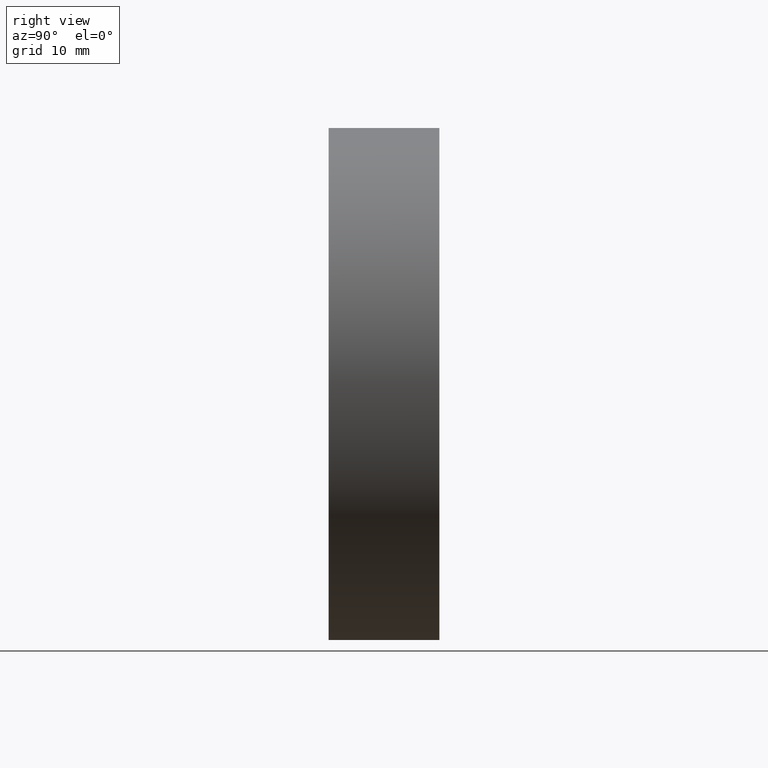
[diagram: clean part render]
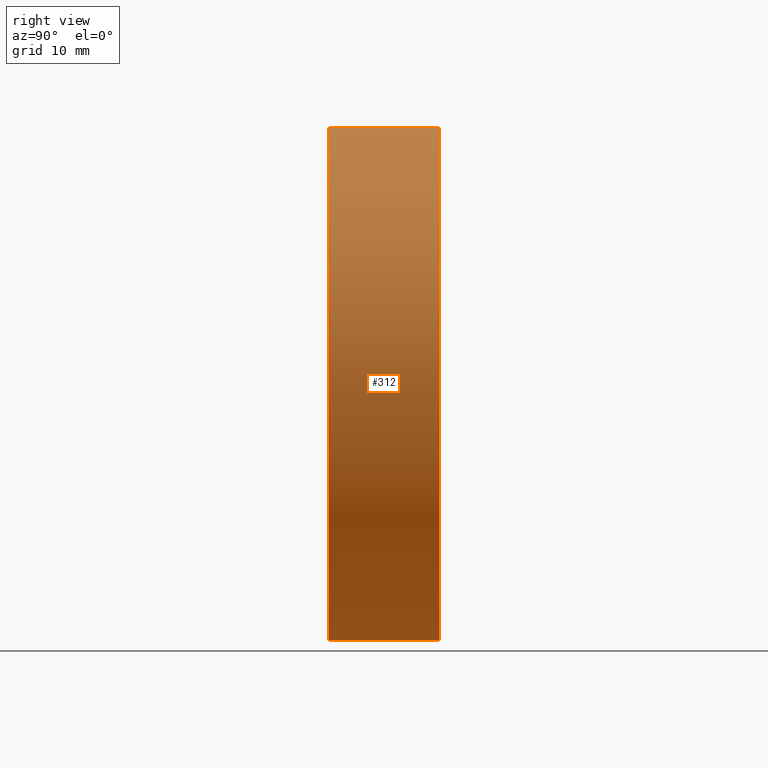
[diagram: same view with one face highlighted and labeled with its STEP entity id]
A machine part, right view. The second image highlights one B-rep face of the part: STEP entity #312.
In plain terms, the highlighted cylindrical surface (partial cylindrical patch) has radius 25.4 mm, axis along (-0, 1, -0).
Its self-contained STEP definition (entity closure, byte-faithful):
#3 = FACE_OUTER_BOUND ( 'NONE', #98, .T. ) ;
#15 = DIRECTION ( 'NONE',  ( -0.0000000000000000000, 1.000000000000000000, -0.0000000000000000000 ) ) ;
#22 = CARTESIAN_POINT ( 'NONE',  ( 0.0000000000000000000, 0.0000000000000000000, 0.0000000000000000000 ) ) ;
#24 = CYLINDRICAL_SURFACE ( 'NONE', #134, 25.40000000000000200 ) ;
#35 = AXIS2_PLACEMENT_3D ( 'NONE', #418, #285, #220 ) ;
#60 = CARTESIAN_POINT ( 'NONE',  ( 3.110602869834277300E-015, 0.0000000000000000000, -25.40000000000000200 ) ) ;
#62 = CIRCLE ( 'NONE', #35, 25.40000000000000200 ) ;
#66 = EDGE_CURVE ( 'NONE', #266, #87, #114, .T. ) ;
#73 = DIRECTION ( 'NONE',  ( -0.0000000000000000000, 1.000000000000000000, -0.0000000000000000000 ) ) ;
#82 = CIRCLE ( 'NONE', #99, 25.40000000000000200 ) ;
#87 = VERTEX_POINT ( 'NONE', #256 ) ;
#89 = ORIENTED_EDGE ( 'NONE', *, *, #249, .T. ) ;
#98 = EDGE_LOOP ( 'NONE', ( #89, #286, #311, #294 ) ) ;
#99 = AXIS2_PLACEMENT_3D ( 'NONE', #22, #129, #164 ) ;
#106 = VECTOR ( 'NONE', #15, 1000.000000000000000 ) ;
#114 = LINE ( 'NONE', #165, #378 ) ;
#129 = DIRECTION ( 'NONE',  ( -0.0000000000000000000, 1.000000000000000000, -0.0000000000000000000 ) ) ;
#134 = AXIS2_PLACEMENT_3D ( 'NONE', #432, #73, #424 ) ;
#139 = LINE ( 'NONE', #208, #106 ) ;
#164 = DIRECTION ( 'NONE',  ( 0.0000000000000000000, 0.0000000000000000000, 1.000000000000000000 ) ) ;
#165 = CARTESIAN_POINT ( 'NONE',  ( 0.0000000000000000000, 60.02082041425541100, 25.40000000000000200 ) ) ;
#208 = CARTESIAN_POINT ( 'NONE',  ( 3.110602869834277300E-015, 60.02082041425541100, -25.40000000000000200 ) ) ;
#220 = DIRECTION ( 'NONE',  ( 0.0000000000000000000, 0.0000000000000000000, 1.000000000000000000 ) ) ;
#234 = EDGE_CURVE ( 'NONE', #87, #357, #62, .T. ) ;
#249 = EDGE_CURVE ( 'NONE', #266, #397, #82, .T. ) ;
#256 = CARTESIAN_POINT ( 'NONE',  ( 0.0000000000000000000, 10.99999999999999600, 25.40000000000000200 ) ) ;
#266 = VERTEX_POINT ( 'NONE', #374 ) ;
#285 = DIRECTION ( 'NONE',  ( -0.0000000000000000000, 1.000000000000000000, -0.0000000000000000000 ) ) ;
#286 = ORIENTED_EDGE ( 'NONE', *, *, #387, .T. ) ;
#294 = ORIENTED_EDGE ( 'NONE', *, *, #66, .F. ) ;
#306 = DIRECTION ( 'NONE',  ( -0.0000000000000000000, 1.000000000000000000, -0.0000000000000000000 ) ) ;
#311 = ORIENTED_EDGE ( 'NONE', *, *, #234, .F. ) ;
#312 = ADVANCED_FACE ( 'NONE', ( #3 ), #24, .T. ) ;
#357 = VERTEX_POINT ( 'NONE', #385 ) ;
#374 = CARTESIAN_POINT ( 'NONE',  ( 0.0000000000000000000, 0.0000000000000000000, 25.40000000000000200 ) ) ;
#378 = VECTOR ( 'NONE', #306, 1000.000000000000000 ) ;
#385 = CARTESIAN_POINT ( 'NONE',  ( 3.110602869834277300E-015, 10.99999999999999600, -25.40000000000000200 ) ) ;
#387 = EDGE_CURVE ( 'NONE', #397, #357, #139, .T. ) ;
#397 = VERTEX_POINT ( 'NONE', #60 ) ;
#418 = CARTESIAN_POINT ( 'NONE',  ( 0.0000000000000000000, 10.99999999999999600, 0.0000000000000000000 ) ) ;
#424 = DIRECTION ( 'NONE',  ( 0.0000000000000000000, 0.0000000000000000000, 1.000000000000000000 ) ) ;
#432 = CARTESIAN_POINT ( 'NONE',  ( 0.0000000000000000000, 60.02082041425541100, 0.0000000000000000000 ) ) ;